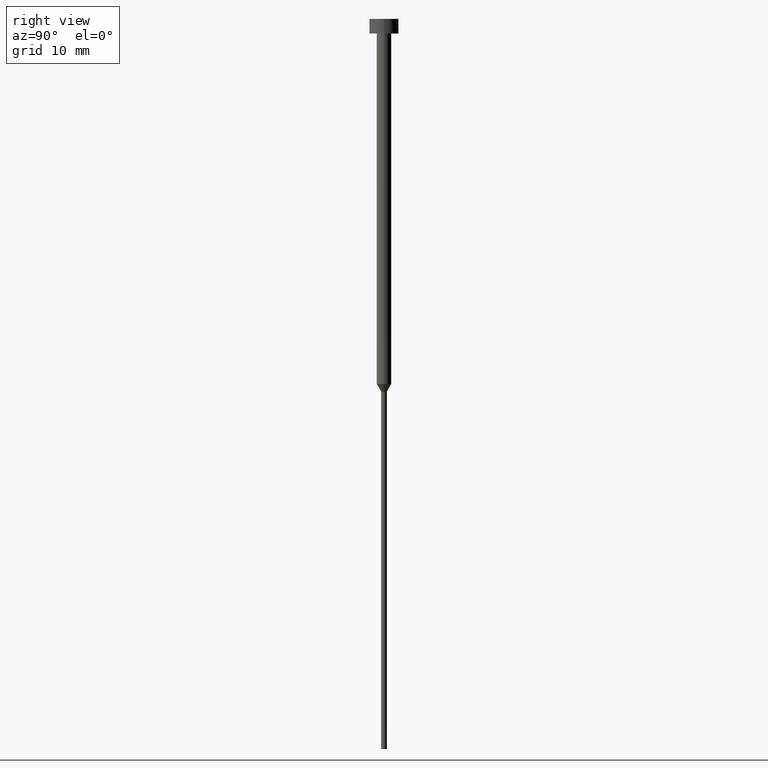
[diagram: clean part render]
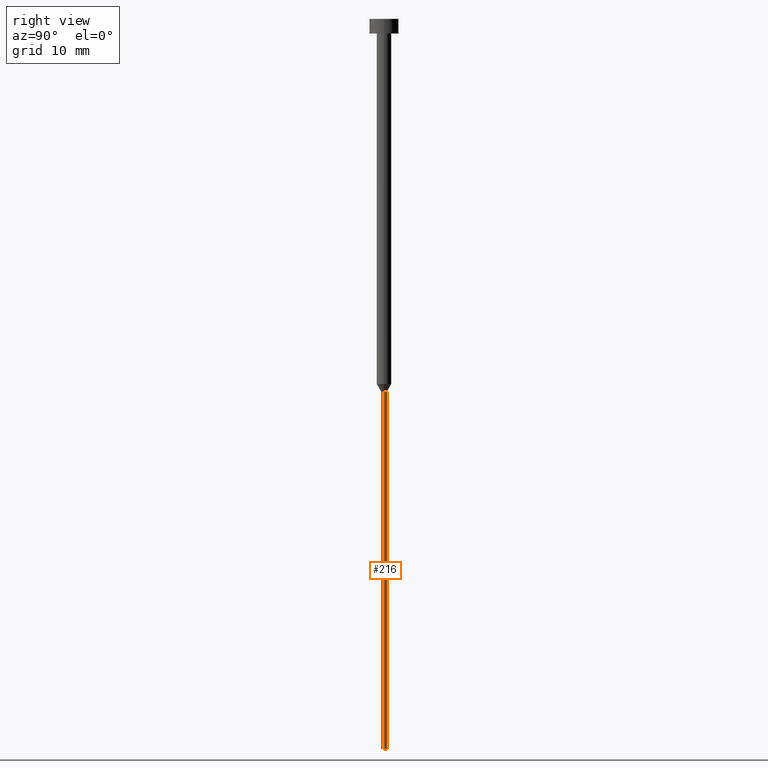
[diagram: same view with one face highlighted and labeled with its STEP entity id]
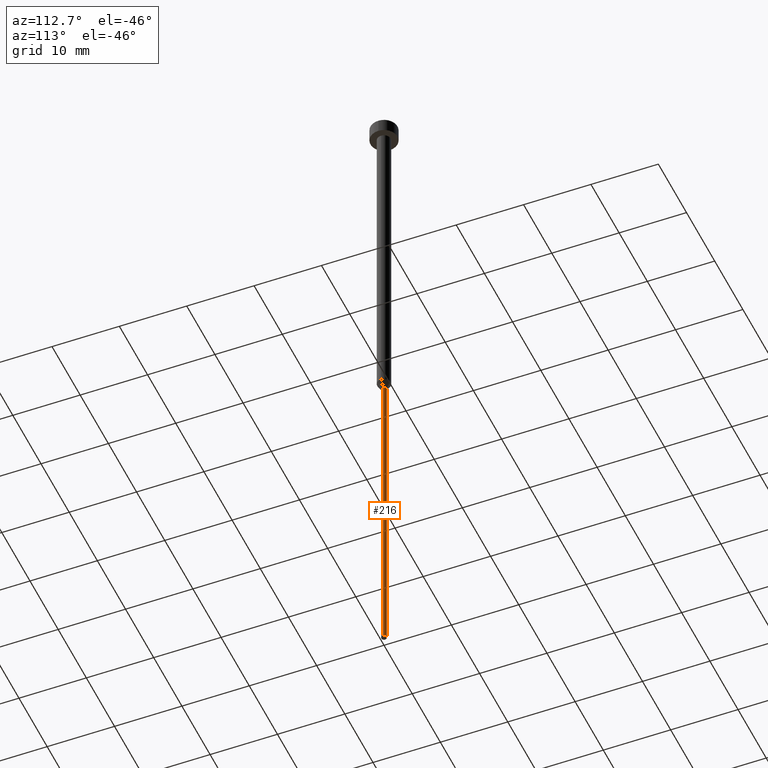
[diagram: same view with one face highlighted and labeled with its STEP entity id]
A machine part, right view. The second image highlights one B-rep face of the part: STEP entity #216.
A second angle (auxiliary view) of the same face is appended — the face is thin or edge-on in the first view.
In plain terms, the highlighted cylindrical surface (edge-blend (fillet) strip) has radius 0.4 mm, axis along (-0, -0, 1).
Its self-contained STEP definition (entity closure, byte-faithful):
#20 = DIRECTION ( 'NONE',  ( -0.000000000000000000, -0.000000000000000000, 1.000000000000000000 ) ) ;
#32 = CARTESIAN_POINT ( 'NONE',  ( -0.3999999999999999667, 4.898587196589412459E-17, 0.000000000000000000 ) ) ;
#35 = DIRECTION ( 'NONE',  ( 1.000000000000000000, 0.000000000000000000, 0.000000000000000000 ) ) ;
#36 = EDGE_LOOP ( 'NONE', ( #201, #217, #341, #299 ) ) ;
#38 = CIRCLE ( 'NONE', #275, 0.3999999999999999667 ) ;
#58 = VERTEX_POINT ( 'NONE', #254 ) ;
#63 = VERTEX_POINT ( 'NONE', #225 ) ;
#67 = CARTESIAN_POINT ( 'NONE',  ( 0.4000000000000000222, 0.000000000000000000, -100.0000000000000000 ) ) ;
#85 = VECTOR ( 'NONE', #271, 1000.000000000000000 ) ;
#93 = CIRCLE ( 'NONE', #327, 0.4000000000000000222 ) ;
#105 = AXIS2_PLACEMENT_3D ( 'NONE', #319, #148, #180 ) ;
#106 = VERTEX_POINT ( 'NONE', #67 ) ;
#122 = DIRECTION ( 'NONE',  ( -0.000000000000000000, -0.000000000000000000, 1.000000000000000000 ) ) ;
#145 = EDGE_CURVE ( 'NONE', #106, #204, #93, .T. ) ;
#148 = DIRECTION ( 'NONE',  ( -0.000000000000000000, -0.000000000000000000, 1.000000000000000000 ) ) ;
#164 = LINE ( 'NONE', #32, #323 ) ;
#180 = DIRECTION ( 'NONE',  ( 1.000000000000000000, 0.000000000000000000, 0.000000000000000000 ) ) ;
#201 = ORIENTED_EDGE ( 'NONE', *, *, #145, .T. ) ;
#204 = VERTEX_POINT ( 'NONE', #290 ) ;
#216 = ADVANCED_FACE ( 'NONE', ( #296 ), #343, .T. ) ;
#217 = ORIENTED_EDGE ( 'NONE', *, *, #294, .T. ) ;
#225 = CARTESIAN_POINT ( 'NONE',  ( -0.3999999999999999667, 4.898587196589412459E-17, -51.03923048454132783 ) ) ;
#232 = CARTESIAN_POINT ( 'NONE',  ( 0.3999999999999999667, 0.000000000000000000, 0.000000000000000000 ) ) ;
#234 = EDGE_CURVE ( 'NONE', #106, #58, #317, .T. ) ;
#239 = DIRECTION ( 'NONE',  ( 1.000000000000000000, 0.000000000000000000, 0.000000000000000000 ) ) ;
#254 = CARTESIAN_POINT ( 'NONE',  ( 0.3999999999999999667, 0.000000000000000000, -51.03923048454132783 ) ) ;
#271 = DIRECTION ( 'NONE',  ( -0.000000000000000000, -0.000000000000000000, 1.000000000000000000 ) ) ;
#275 = AXIS2_PLACEMENT_3D ( 'NONE', #303, #306, #35 ) ;
#290 = CARTESIAN_POINT ( 'NONE',  ( -0.4000000000000000777, 4.898587196589413692E-17, -100.0000000000000000 ) ) ;
#294 = EDGE_CURVE ( 'NONE', #204, #63, #164, .T. ) ;
#296 = FACE_OUTER_BOUND ( 'NONE', #36, .T. ) ;
#298 = CARTESIAN_POINT ( 'NONE',  ( 0.000000000000000000, 0.000000000000000000, -100.0000000000000000 ) ) ;
#299 = ORIENTED_EDGE ( 'NONE', *, *, #234, .F. ) ;
#303 = CARTESIAN_POINT ( 'NONE',  ( 0.000000000000000000, 0.000000000000000000, -51.03923048454132783 ) ) ;
#306 = DIRECTION ( 'NONE',  ( -0.000000000000000000, -0.000000000000000000, 1.000000000000000000 ) ) ;
#309 = EDGE_CURVE ( 'NONE', #58, #63, #38, .T. ) ;
#317 = LINE ( 'NONE', #232, #85 ) ;
#319 = CARTESIAN_POINT ( 'NONE',  ( 0.000000000000000000, 0.000000000000000000, 0.000000000000000000 ) ) ;
#323 = VECTOR ( 'NONE', #122, 1000.000000000000000 ) ;
#327 = AXIS2_PLACEMENT_3D ( 'NONE', #298, #20, #239 ) ;
#341 = ORIENTED_EDGE ( 'NONE', *, *, #309, .F. ) ;
#343 = CYLINDRICAL_SURFACE ( 'NONE', #105, 0.3999999999999999667 ) ;